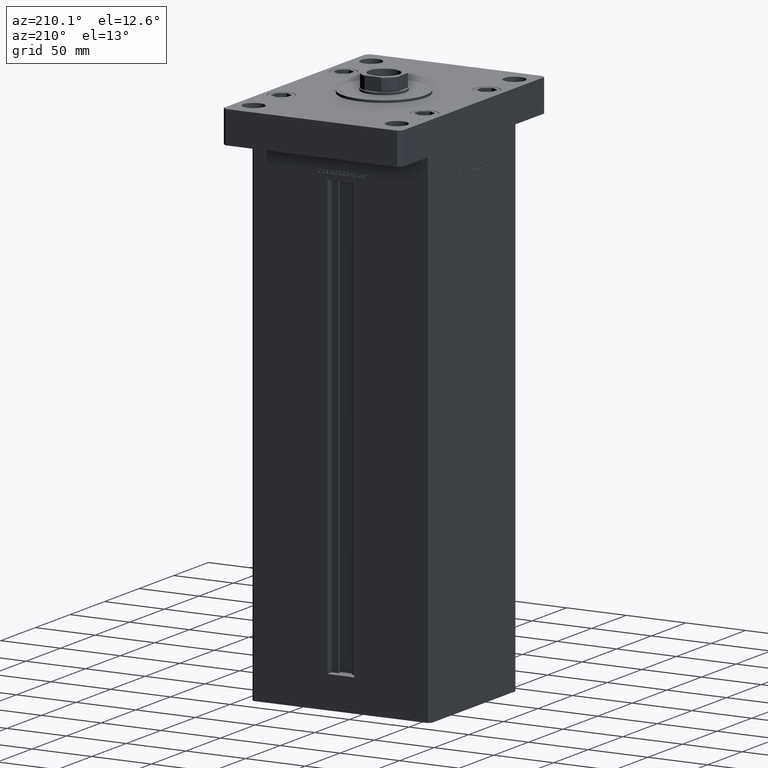
[diagram: clean part render]
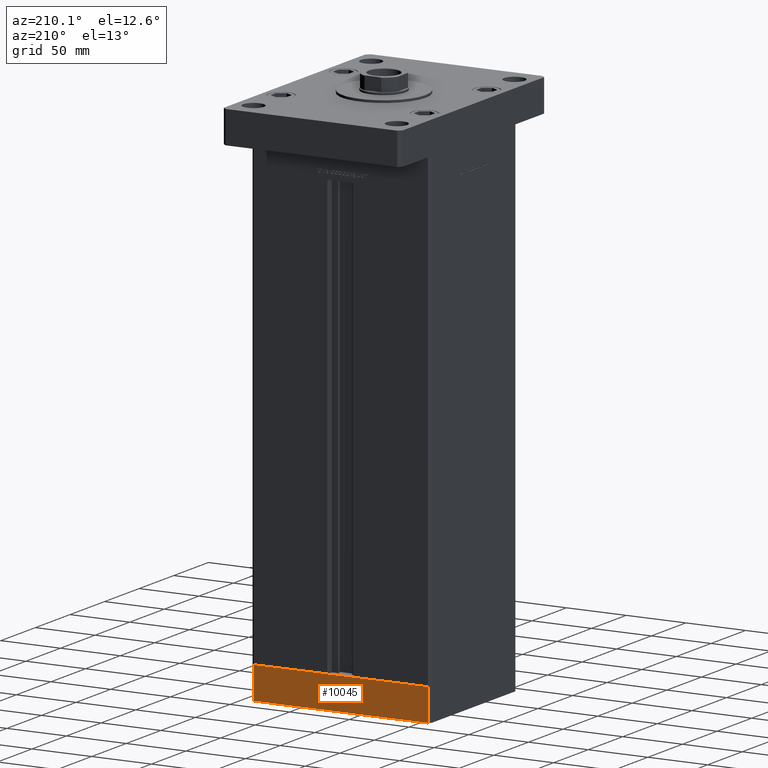
[diagram: same view with one face highlighted and labeled with its STEP entity id]
A machine part, auxiliary view. The second image highlights one B-rep face of the part: STEP entity #10045.
In plain terms, the highlighted planar face has unit normal (0, 1, 0).
Its self-contained STEP definition (entity closure, byte-faithful):
#254 = DIRECTION ( 'NONE',  ( 0.000000000000000000, 0.000000000000000000, 1.000000000000000000 ) ) ;
#343 = EDGE_CURVE ( 'NONE', #46669, #26272, #13998, .T. ) ;
#5004 = FACE_OUTER_BOUND ( 'NONE', #45510, .T. ) ;
#5696 = CARTESIAN_POINT ( 'NONE',  ( 72.99999999999992895, 62.50000000000001421, 0.000000000000000000 ) ) ;
#6813 = DIRECTION ( 'NONE',  ( -1.000000000000000000, -1.901066822988282689E-16, 0.000000000000000000 ) ) ;
#8240 = VERTEX_POINT ( 'NONE', #34998 ) ;
#9126 = VECTOR ( 'NONE', #254, 1000.000000000000000 ) ;
#9599 = DIRECTION ( 'NONE',  ( -1.000000000000000000, -1.901066822988282936E-16, 0.000000000000000000 ) ) ;
#10045 = ADVANCED_FACE ( 'NONE', ( #5004 ), #46701, .T. ) ;
#11225 = LINE ( 'NONE', #52131, #24371 ) ;
#11892 = CARTESIAN_POINT ( 'NONE',  ( 72.99999999999992895, 62.50000000000001421, -27.00000000000000000 ) ) ;
#12476 = VECTOR ( 'NONE', #6813, 1000.000000000000000 ) ;
#13998 = LINE ( 'NONE', #43765, #23146 ) ;
#15034 = DIRECTION ( 'NONE',  ( -1.000000000000000000, -1.901066822988282689E-16, 0.000000000000000000 ) ) ;
#18723 = ORIENTED_EDGE ( 'NONE', *, *, #48567, .F. ) ;
#23146 = VECTOR ( 'NONE', #35090, 1000.000000000000000 ) ;
#24371 = VECTOR ( 'NONE', #15034, 1000.000000000000000 ) ;
#25754 = ORIENTED_EDGE ( 'NONE', *, *, #343, .T. ) ;
#26107 = DIRECTION ( 'NONE',  ( -1.901066822988282936E-16, 1.000000000000000000, 0.000000000000000000 ) ) ;
#26272 = VERTEX_POINT ( 'NONE', #53001 ) ;
#30499 = CARTESIAN_POINT ( 'NONE',  ( -73.00000000000001421, 62.49999999999998579, -27.00000000000000000 ) ) ;
#33707 = EDGE_CURVE ( 'NONE', #8240, #46669, #11225, .T. ) ;
#34223 = CARTESIAN_POINT ( 'NONE',  ( 72.99999999999992895, 62.50000000000001421, -27.00000000000000000 ) ) ;
#34984 = CARTESIAN_POINT ( 'NONE',  ( 72.99999999999992895, 62.50000000000001421, 0.000000000000000000 ) ) ;
#34998 = CARTESIAN_POINT ( 'NONE',  ( 72.99999999999992895, 62.50000000000001421, -27.00000000000000000 ) ) ;
#35090 = DIRECTION ( 'NONE',  ( 0.000000000000000000, 0.000000000000000000, 1.000000000000000000 ) ) ;
#35577 = ORIENTED_EDGE ( 'NONE', *, *, #33707, .T. ) ;
#43435 = ORIENTED_EDGE ( 'NONE', *, *, #43685, .F. ) ;
#43685 = EDGE_CURVE ( 'NONE', #43998, #26272, #47989, .T. ) ;
#43765 = CARTESIAN_POINT ( 'NONE',  ( -73.00000000000001421, 62.49999999999998579, -27.00000000000000000 ) ) ;
#43998 = VERTEX_POINT ( 'NONE', #5696 ) ;
#45510 = EDGE_LOOP ( 'NONE', ( #43435, #18723, #35577, #25754 ) ) ;
#46669 = VERTEX_POINT ( 'NONE', #30499 ) ;
#46701 = PLANE ( 'NONE',  #51016 ) ;
#47989 = LINE ( 'NONE', #34984, #12476 ) ;
#48567 = EDGE_CURVE ( 'NONE', #8240, #43998, #48995, .T. ) ;
#48995 = LINE ( 'NONE', #11892, #9126 ) ;
#51016 = AXIS2_PLACEMENT_3D ( 'NONE', #34223, #26107, #9599 ) ;
#52131 = CARTESIAN_POINT ( 'NONE',  ( 72.99999999999992895, 62.50000000000001421, -27.00000000000000000 ) ) ;
#53001 = CARTESIAN_POINT ( 'NONE',  ( -73.00000000000001421, 62.49999999999998579, 0.000000000000000000 ) ) ;